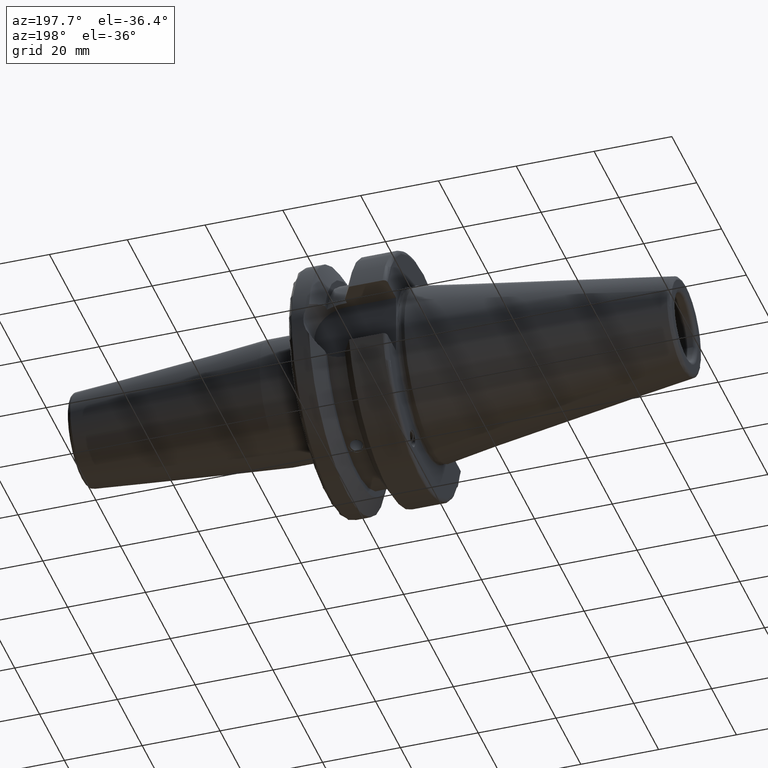
[diagram: clean part render]
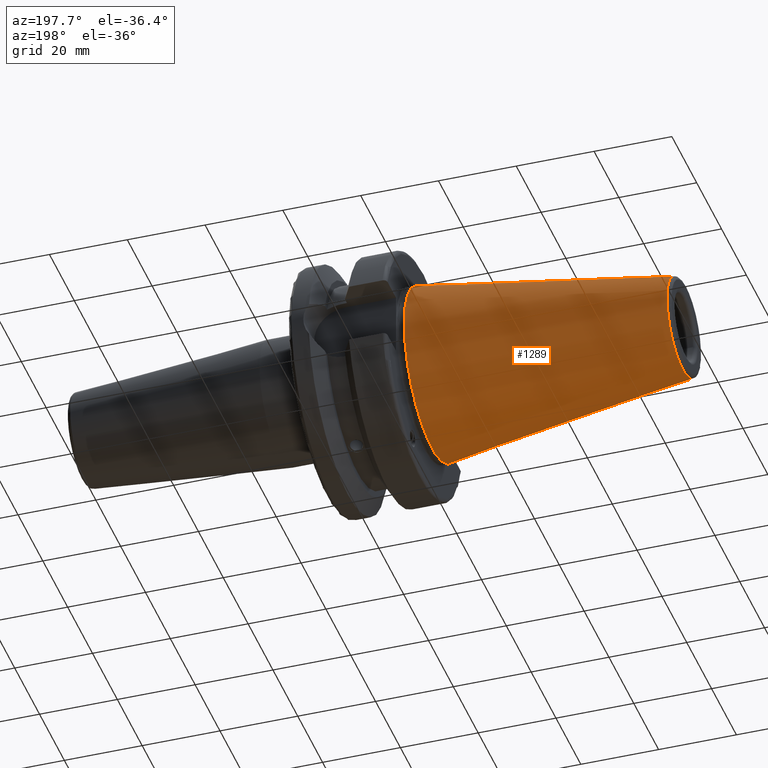
[diagram: same view with one face highlighted and labeled with its STEP entity id]
A machine part, auxiliary view. The second image highlights one B-rep face of the part: STEP entity #1289.
In plain terms, the highlighted conical surface has half-angle 8.297 deg.
Its self-contained STEP definition (entity closure, byte-faithful):
#134=CONICAL_SURFACE('',#1470,17.5186442890469,0.144812498238939);
#201=FACE_OUTER_BOUND('',#292,.T.);
#292=EDGE_LOOP('',(#1139,#1140,#1141,#1142,#1143));
#367=CIRCLE('',#1467,12.8122885780937);
#368=CIRCLE('',#1468,12.8122885780937);
#370=CIRCLE('',#1471,22.225);
#446=LINE('',#2502,#512);
#512=VECTOR('',#1856,17.5186442890469);
#631=VERTEX_POINT('',#2494);
#632=VERTEX_POINT('',#2495);
#633=VERTEX_POINT('',#2500);
#807=EDGE_CURVE('',#631,#632,#367,.T.);
#808=EDGE_CURVE('',#632,#631,#368,.T.);
#810=EDGE_CURVE('',#633,#633,#370,.T.);
#811=EDGE_CURVE('',#633,#631,#446,.T.);
#1139=ORIENTED_EDGE('',*,*,#810,.F.);
#1140=ORIENTED_EDGE('',*,*,#811,.T.);
#1141=ORIENTED_EDGE('',*,*,#807,.T.);
#1142=ORIENTED_EDGE('',*,*,#808,.T.);
#1143=ORIENTED_EDGE('',*,*,#811,.F.);
#1289=ADVANCED_FACE('',(#201),#134,.T.);
#1467=AXIS2_PLACEMENT_3D('',#2496,#1846,#1847);
#1468=AXIS2_PLACEMENT_3D('',#2497,#1848,#1849);
#1470=AXIS2_PLACEMENT_3D('',#2499,#1852,#1853);
#1471=AXIS2_PLACEMENT_3D('',#2501,#1854,#1855);
#1846=DIRECTION('center_axis',(1.,0.,0.));
#1847=DIRECTION('ref_axis',(0.,0.,-1.));
#1848=DIRECTION('center_axis',(1.,0.,0.));
#1849=DIRECTION('ref_axis',(0.,0.,-1.));
#1852=DIRECTION('center_axis',(1.,0.,0.));
#1853=DIRECTION('ref_axis',(0.,1.,0.));
#1854=DIRECTION('center_axis',(1.,0.,0.));
#1855=DIRECTION('ref_axis',(0.,0.,-1.));
#1856=DIRECTION('',(-0.989532981063281,0.144306893071729,1.76724974695192E-17));
#2494=CARTESIAN_POINT('',(-64.5443068930717,-12.8122885780937,-1.56905281969147E-15));
#2495=CARTESIAN_POINT('',(-64.5443068930717,-1.56905281969147E-15,12.8122885780937));
#2496=CARTESIAN_POINT('Origin',(-64.5443068930717,0.,0.));
#2497=CARTESIAN_POINT('Origin',(-64.5443068930717,0.,0.));
#2499=CARTESIAN_POINT('Origin',(-32.2721534465359,0.,0.));
#2500=CARTESIAN_POINT('',(4.44089209850063E-15,-22.225,-2.72177751110499E-15));
#2501=CARTESIAN_POINT('Origin',(0.,0.,0.));
#2502=CARTESIAN_POINT('',(-32.2721534465359,-17.5186442890469,-2.14541516539823E-15));